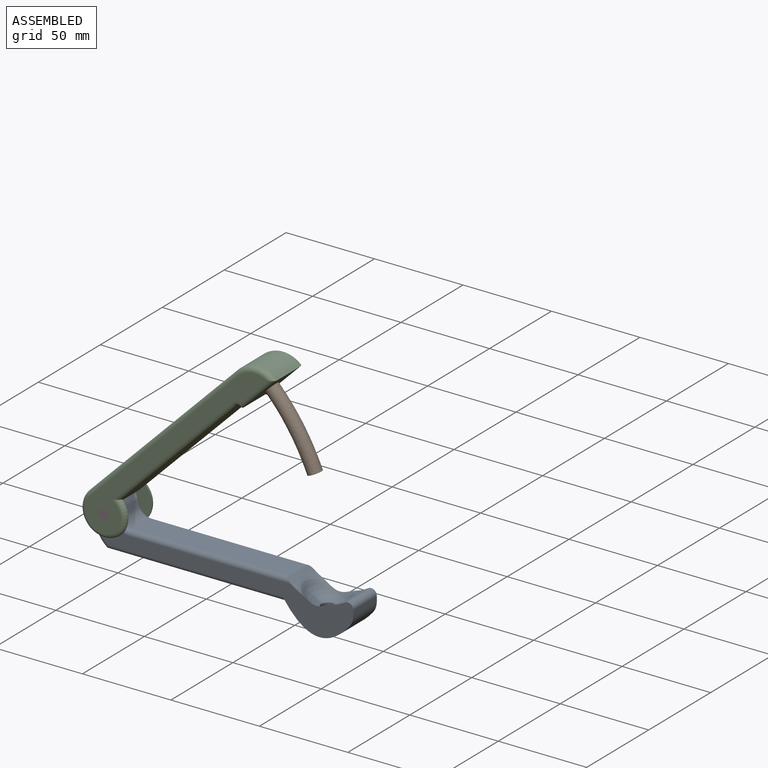
[diagram: assembled view]
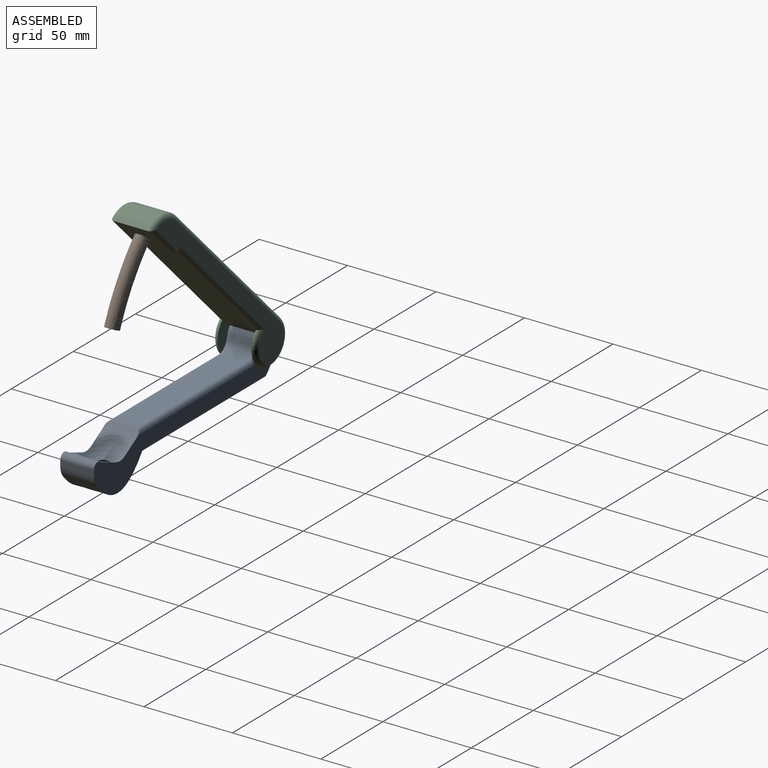
[diagram: assembled view, second angle]
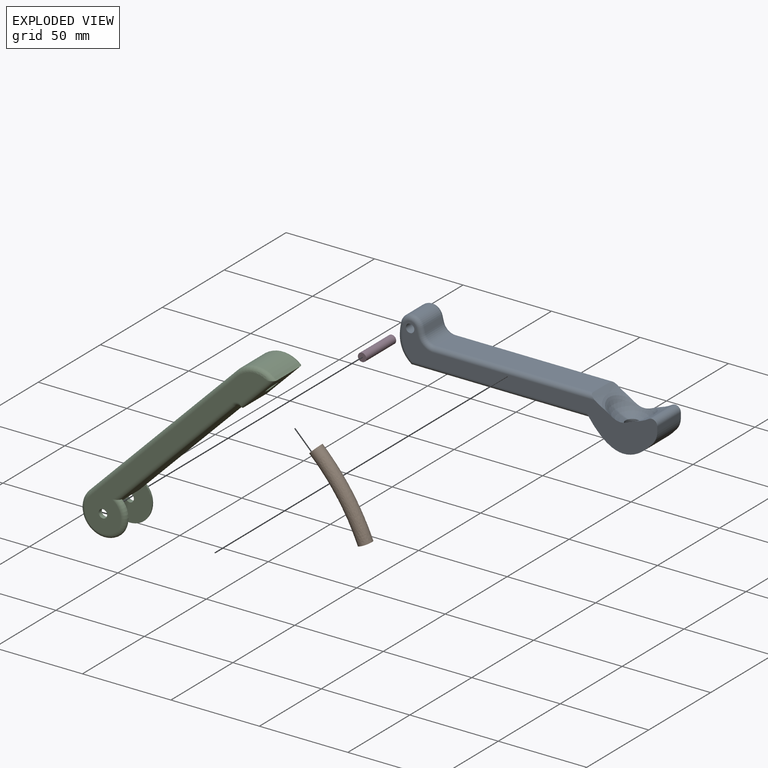
[diagram: exploded view]
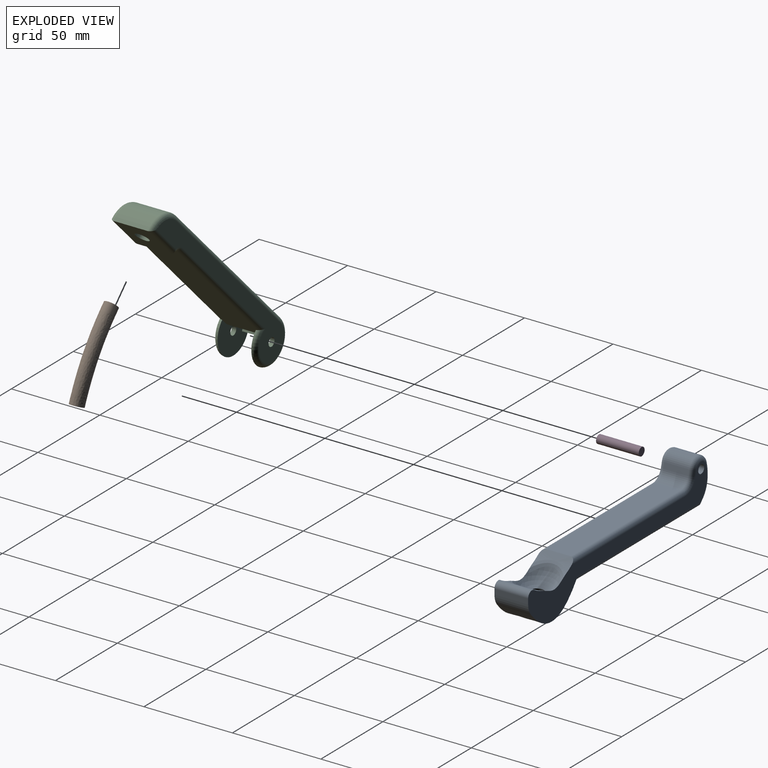
[diagram: exploded view, second angle]
ASSEMBLY  parts=4 mates=3
PART A: 34 faces, bbox 28.3x148.2x47.7 mm
  f0: cylinder r=3.81mm len=7.62mm, axis (0,0,1), area 4.5mm2, adj f17,f20,f21
  f1: cylinder r=26.94mm len=19.05mm, axis (-1,0,0), area 98.3mm2, adj f3,f14,f15,f19,f27,f33
  f2: cylinder r=26.94mm len=19.05mm, axis (-1,0,0), area 83.4mm2, adj f12,f14,f15,f18
  f3: plane 88.49x13.97mm, normal (0,0,1), area 1236.2mm2, adj f1,f4,f27,f33
  f4: cylinder r=6.35mm len=13.97mm, axis (-1,0,0), area 117.2mm2, adj f3,f5,f26,f32
  f5: plane 13.97x3.14mm, normal (0,0.97,0.25), area 45.3mm2, adj f4,f6,f25,f31
  f6: cylinder r=6.35mm len=13.97mm, axis (-1,0,0), area 234.9mm2, adj f5,f7,f24,f30
  f7: extruded ~20.58x13.97mm, area 320.9mm2, adj f6,f8,f23,f29
  f8: plane 101.6x13.97mm, normal (0,0,-1), area 1419.4mm2, adj f7,f9,f22,f28
  f9: extruded ~37.73x19.05mm, area 778.7mm2, adj f8,f10,f14,f15,f16,f21,f22,f28
  f10: cylinder r=9.53mm len=19.05mm, axis (-1,0,0), area 128mm2, adj f9,f11,f14,f15
  f11: plane 19.05x2.97mm, normal (0,1,0), area 56.5mm2, adj f10,f12,f14,f15
  f12: cylinder r=3.1mm len=19.05mm, axis (-1,0,0), area 125.9mm2, adj f2,f11,f14,f15
  f13: cylinder r=2.38mm len=19.05mm, axis (-1,0,0), area 285mm2, adj f14,f15
  f14: plane 145.63x41.15mm, normal (1,0,0), area 1455.6mm2, adj f1,f2,f9,f10,f11,f12,f13,f17
  f15: plane 145.63x41.15mm, normal (-1,0,0), area 1455.6mm2, adj f1,f2,f9,f10,f11,f12,f13,f17
  f16: cylinder r=3.81mm len=11.01mm, axis (0,0,1), area 145.2mm2, adj f9,f20,f21
  f17: sphere r=12.7mm, area 423.4mm2, adj f0,f14,f15,f18,f19,f20
  f18: bspline ~26.86x12.79mm, area 94.3mm2, adj f2,f14,f15,f17
  f19: bspline ~26.86x11.94mm, area 94.3mm2, adj f1,f14,f15,f17
  f20: torus R=120.57mm, axis (-1,0,0), area 10mm2, adj f0,f16,f17
  f21: torus R=120.57mm, axis (-1,0,0), area 141.9mm2, adj f0,f9,f16
  f22: cylinder r=2.54mm len=101.6mm, axis (0,1,0), area 399.8mm2, adj f8,f9,f15,f23
  f23: bspline ~29.98x9.28mm, area 85.6mm2, adj f7,f15,f22,f24
  f24: torus R=3.81mm, axis (1,0,0), area 57.3mm2, adj f6,f15,f23,f25
  f25: cylinder r=2.54mm len=3.77mm, axis (0,-0.25,0.97), area 12.9mm2, adj f5,f15,f24,f26
  f26: torus R=8.89mm, axis (1,0,0), area 38.3mm2, adj f4,f15,f25,f27
  f27: cylinder r=2.54mm len=91.43mm, axis (0,-1,0), area 358.9mm2, adj f1,f3,f15,f26
  f28: cylinder r=2.54mm len=101.6mm, axis (0,-1,0), area 399.8mm2, adj f8,f9,f14,f29
  f29: bspline ~29.98x9.28mm, area 85.6mm2, adj f7,f14,f28,f30
  f30: torus R=3.81mm, axis (1,0,0), area 57.3mm2, adj f6,f14,f29,f31
  f31: cylinder r=2.54mm len=3.77mm, axis (0,0.25,-0.97), area 12.9mm2, adj f5,f14,f30,f32
  f32: torus R=8.89mm, axis (1,0,0), area 38.3mm2, adj f4,f14,f31,f33
  f33: cylinder r=2.54mm len=91.43mm, axis (0,1,0), area 358.9mm2, adj f1,f3,f14,f32
PART B: 4 faces, bbox 16.5x15.2x50.1 mm
  f0: cone r=0mm half-angle=26.6deg, axis (-0.36,0,-0.93), area 102mm2, adj f1
  f1: bspline ~45.03x16.52mm, area 1075.7mm2, adj f0,f2
  f2: cylinder r=3.81mm len=7.62mm, axis (0,0,-1), area 121.6mm2, adj f1,f3
  f3: plane 7.62x7.62mm, normal (0,0,1), area 45.6mm2, adj f2
PART C: 28 faces, bbox 149x24.1x27.7 mm
  f0: cylinder r=2.38mm len=4.76mm, axis (0,1,0), area 38mm2, adj f10,f11
  f1: plane 97.16x19.05mm, normal (0,0,-1), area 1850.9mm2, adj f4,f11,f12,f17,f23,f25
  f2: plane 19.05x4.69mm, normal (-0.38,0,-0.92), area 96.8mm2, adj f3,f11,f12,f25
  f3: cylinder r=12.7mm len=19.05mm, axis (0,1,0), area 285mm2, adj f2,f7,f18,f24
  f4: cylinder r=2.54mm len=19.05mm, axis (0,1,0), area 76mm2, adj f1,f5,f15,f21
  f5: plane 26.67x19.05mm, normal (0,0,-1), area 462.5mm2, adj f4,f6,f13,f19,f26
  f6: cylinder r=15.24mm len=19.05mm, axis (0,1,0), area 456mm2, adj f5,f7,f14,f20
  f7: plane 118.75x19.05mm, normal (0,0,1), area 2262.1mm2, adj f3,f6,f16,f22
  f8: cylinder r=2.38mm len=4.76mm, axis (0,1,0), area 38mm2, adj f9,f12
  f9: plane 141.35x20.32mm, normal (0,-1,0), area 1278mm2, adj f8,f19,f20,f21,f22,f23,f24
  f10: plane 141.35x20.32mm, normal (0,1,0), area 1278mm2, adj f0,f13,f14,f15,f16,f17,f18
  f11: plane 25.4x20.32mm, normal (0,-1,0), area 347mm2, adj f0,f1,f2,f18,f25
  f12: plane 25.4x20.32mm, normal (0,1,0), area 347mm2, adj f1,f2,f8,f24,f25
  f13: cylinder r=2.54mm len=26.67mm, axis (1,0,0), area 99.5mm2, adj f5,f10,f14,f15
  f14: torus R=12.7mm, axis (0,-1,0), area 86mm2, adj f6,f10,f13,f16
  f15: torus R=5.08mm, axis (0,-1,0), area 17.9mm2, adj f4,f10,f13,f17
  f16: cylinder r=2.54mm len=118.75mm, axis (-1,0,0), area 473.8mm2, adj f7,f10,f14,f18
  f17: cylinder r=2.54mm len=94.94mm, axis (1,0,0), area 371.3mm2, adj f1,f10,f15,f18
  f18: torus R=10.16mm, axis (0,-1,0), area 225.1mm2, adj f3,f10,f11,f16,f17
  f19: cylinder r=2.54mm len=26.67mm, axis (-1,0,0), area 99.5mm2, adj f5,f9,f20,f21
  f20: torus R=12.7mm, axis (0,-1,0), area 86mm2, adj f6,f9,f19,f22
  f21: torus R=5.08mm, axis (0,-1,0), area 17.9mm2, adj f4,f9,f19,f23
  f22: cylinder r=2.54mm len=118.75mm, axis (1,0,0), area 473.8mm2, adj f7,f9,f20,f24
  f23: cylinder r=2.54mm len=94.94mm, axis (-1,0,0), area 371.3mm2, adj f1,f9,f21,f24
  f24: torus R=10.16mm, axis (0,-1,0), area 225.1mm2, adj f3,f9,f12,f22,f23
  f25: cylinder r=7.62mm len=19.05mm, axis (0,-1,0), area 399mm2, adj f1,f2,f11,f12
  f26: cylinder r=3.81mm len=7.62mm, axis (0,0,-1), area 121.6mm2, adj f5,f27
  f27: plane 7.62x7.62mm, normal (0,0,-1), area 45.6mm2, adj f26
PART D: 3 faces, bbox 4.8x4.8x24.1 mm
  f0: cylinder r=2.38mm len=24.13mm, axis (0,0,-1), area 361mm2, adj f1,f2
  f1: plane 4.76x4.76mm, normal (0,0,1), area 17.8mm2, adj f0
  f2: plane 4.76x4.76mm, normal (0,0,-1), area 17.8mm2, adj f0
PLACE A rot(axis=(0,0,-1),90deg) t=(101.6,0,-19.05)mm fixed
PLACE B rot(axis=(0,-1,0),45deg) t=(0,0,0)mm
PLACE C rot(axis=(0,-1,0),45deg) t=(0,0,0)mm
PLACE D rot(axis=(0.86,-0.36,0.36),98.4deg) t=(0,12.07,0)mm
MATE fastened D.f0 <-> C.f0  axis (0,-1,0) through (0,-12.07,0)mm
MATE revolute A.f6 <-> C.f0  axis (0,1,0) through (0,-9.52,0)mm
MATE fastened B.f2 <-> C.f26  axis (-0.71,0,0.71) through (83.52,0,87.11)mm
